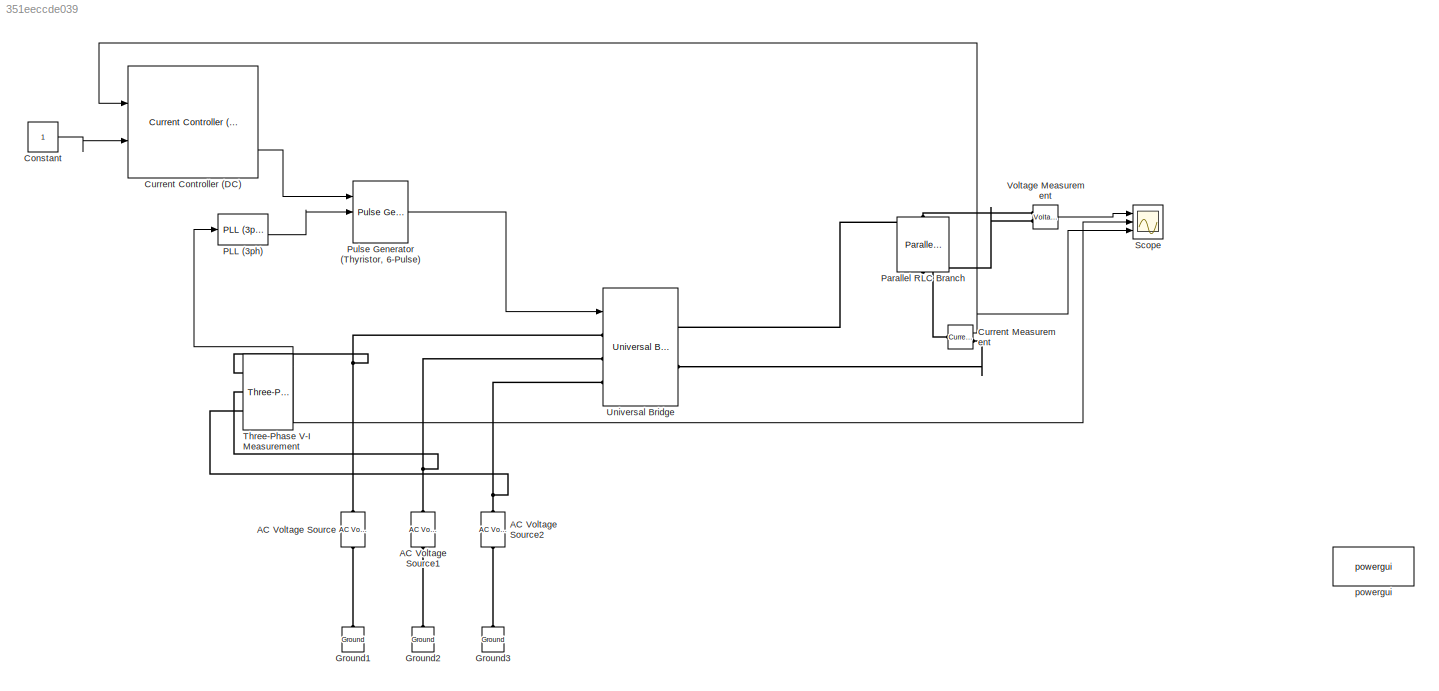
MODEL slx_351eeccde039
KIND model
CONFIG AbsTol = auto
CONFIG EnableMultiTasking = off
CONFIG FixedStep = auto
CONFIG MaxStep = auto
CONFIG MinStep = auto
CONFIG RelTol = 1e-3
CONFIG SampleTimeConstraint = Unconstrained
CONFIG Solver = VariableStepAuto
CONFIG SolverName = VariableStepAuto
CONFIG StartTime = 0.0
CONFIG StopTime = 0.03167
BLOCK [Reference] AC Voltage Source  REF=powerlib/Electrical
Sources/AC Voltage Source
  Ports = [0, 0, 0, 0, 0, 1, 1]
  SourceBlock = powerlib/Electrical\nSources/AC Voltage Source
  SourceProductBaseCode = PS
  SourceProductName = Simscape Electrical
  SourceType = AC Voltage Source
BLOCK [Reference] AC Voltage Source1  REF=powerlib/Electrical
Sources/AC Voltage Source
  Ports = [0, 0, 0, 0, 0, 1, 1]
  SourceBlock = powerlib/Electrical\nSources/AC Voltage Source
  SourceProductBaseCode = PS
  SourceProductName = Simscape Electrical
  SourceType = AC Voltage Source
BLOCK [Reference] AC Voltage Source2  REF=powerlib/Electrical
Sources/AC Voltage Source
  Ports = [0, 0, 0, 0, 0, 1, 1]
  SourceBlock = powerlib/Electrical\nSources/AC Voltage Source
  SourceProductBaseCode = PS
  SourceProductName = Simscape Electrical
  SourceType = AC Voltage Source
BLOCK [Constant] Constant
BLOCK [Reference] Current Controller (DC)  REF=electricdrivelib/Fundamental Drive Blocks/Current Controller
(DC)
  Ports = [2, 3]
  SourceBlock = electricdrivelib/Fundamental Drive Blocks/Current Controller\n(DC)
  SourceProductBaseCode = PS
  SourceProductName = Simscape Electrical
  SourceType = Current Controller (DC)
BLOCK [Reference] Current Measurement  REF=powerlib/Measurements/Current Measurement
  Ports = [0, 1, 0, 0, 0, 1, 1]
  SourceBlock = powerlib/Measurements/Current Measurement
  SourceProductBaseCode = PS
  SourceProductName = Simscape Electrical
  SourceType = Current Measurement
  UserDataPersistent = on
BLOCK [Reference] Ground1  REF=powerlib/Elements/Ground
  Ports = [0, 0, 0, 0, 0, 1]
  SourceBlock = powerlib/Elements/Ground
  SourceProductBaseCode = PS
  SourceProductName = Simscape Electrical
  SourceType = Ground
BLOCK [Reference] Ground2  REF=powerlib/Elements/Ground
  Ports = [0, 0, 0, 0, 0, 1]
  SourceBlock = powerlib/Elements/Ground
  SourceProductBaseCode = PS
  SourceProductName = Simscape Electrical
  SourceType = Ground
BLOCK [Reference] Ground3  REF=powerlib/Elements/Ground
  Ports = [0, 0, 0, 0, 0, 1]
  SourceBlock = powerlib/Elements/Ground
  SourceProductBaseCode = PS
  SourceProductName = Simscape Electrical
  SourceType = Ground
BLOCK [Reference] PLL (3ph)  REF=powerlib_meascontrol/PLL/PLL
(3ph)
  Ports = [1, 2]
  SourceBlock = powerlib_meascontrol/PLL/PLL\n(3ph)
  SourceProductBaseCode = PS
  SourceProductName = Simscape Electrical
  SourceType = PLL (3ph)
BLOCK [Reference] Parallel RLC Branch  REF=powerlib/Elements/Parallel RLC Branch
  AttributesFormatString = \n
  Ports = [0, 0, 0, 0, 0, 1, 1]
  SourceBlock = powerlib/Elements/Parallel RLC Branch
  SourceProductBaseCode = PS
  SourceProductName = Simscape Electrical
  SourceType = Parallel RLC Branch
BLOCK [Reference] Pulse Generator (Thyristor, 6-Pulse)  REF=powerlib_meascontrol/Pulse & Signal
Generators/Pulse Generator
(Thyristor, 12-Pulse)
  Ports = [3, 1]
  SourceBlock = powerlib_meascontrol/Pulse & Signal\nGenerators/Pulse Generator\n(Thyristor, 12-Pulse)
  SourceProductBaseCode = PS
  SourceProductName = Simscape Electrical
  SourceType = Pulse Generator (Thyristor)
BLOCK [Scope] Scope
  Floating = off
  NumInputPorts = 3
  Ports = [3]
  ScopeSpecificationString = Simulink.scopes.TimeScopeBlockCfg('CurrentConfiguration', extmgr.ConfigurationSet(extmgr.Configuration('Core','General UI',true),extmgr.Configuration('Core','Source UI',true),extmgr.Configuration('Sources','WiredSimulink',true),extmgr.Configuration('Visuals','Time Domain',true,'SerializedDisplays',{struct('MinYLimReal','-1039.94392','MaxYLimReal','1038.4724','YLabelReal','','MinYLimMag','  0.00000...<+2838ch>
BLOCK [Reference] Three-Phase V-I Measurement  REF=powerlib/Measurements/Three-Phase
V-I Measurement
  Ports = [0, 2, 0, 0, 0, 3, 3]
  SourceBlock = powerlib/Measurements/Three-Phase\nV-I Measurement
  SourceProductBaseCode = PS
  SourceProductName = Simscape Electrical
  SourceType = Three-Phase VI Measurement
BLOCK [Reference] Universal Bridge  REF=powerlib/Power
Electronics/Universal Bridge
  Ports = [1, 0, 0, 0, 0, 3, 2]
  SourceBlock = powerlib/Power\nElectronics/Universal Bridge
  SourceProductBaseCode = PS
  SourceProductName = Simscape Electrical
  SourceType = Universal Bridge
BLOCK [Reference] Voltage Measurement  REF=powerlib/Measurements/Voltage Measurement
  Ports = [0, 1, 0, 0, 0, 2]
  SourceBlock = powerlib/Measurements/Voltage Measurement
  SourceProductBaseCode = PS
  SourceProductName = Simscape Electrical
  SourceType = Voltage Measurement
  UserDataPersistent = on
BLOCK [Reference] powergui  REF=powerlib/powergui
  Ports = []
  Priority = 1
  SourceBlock = powerlib/powergui
  SourceProductBaseCode = PS
  SourceProductName = Simscape Electrical
  SourceType = PSB option menu block
LINE Constant:1 -> Current Controller (DC):2
LINE Current Controller (DC):3 -> Pulse Generator (Thyristor, 6-Pulse):1
NET Current Measurement:1 -> Current Controller (DC):1, Scope:3
LINE PLL (3ph):2 -> Pulse Generator (Thyristor, 6-Pulse):2
LINE Pulse Generator (Thyristor, 6-Pulse):1 -> Universal Bridge:1
NET Three-Phase V-I Measurement:1 -> PLL (3ph):1, Scope:2
LINE Voltage Measurement:1 -> Scope:1
PLINE AC Voltage Source1:LConn1 -- Ground2:LConn1
PNET net1: AC Voltage Source1:RConn1 -- Three-Phase V-I Measurement:LConn2 -- Universal Bridge:LConn2
PLINE AC Voltage Source2:LConn1 -- Ground3:LConn1
PNET net2: AC Voltage Source2:RConn1 -- Three-Phase V-I Measurement:LConn3 -- Universal Bridge:LConn3
PLINE AC Voltage Source:LConn1 -- Ground1:LConn1
PNET net3: AC Voltage Source:RConn1 -- Three-Phase V-I Measurement:LConn1 -- Universal Bridge:LConn1
PNET net4: Current Measurement:LConn1 -- Parallel RLC Branch:RConn1 -- Voltage Measurement:LConn2
PLINE Current Measurement:RConn1 -- Universal Bridge:RConn2
PNET net5: Parallel RLC Branch:LConn1 -- Universal Bridge:RConn1 -- Voltage Measurement:LConn1
note: NET lines group one-source signal fan-out (src -> all destinations, sorted); 1:1 wires keep LINE; PNET lines group multi-terminal physical nets as a canonical sorted terminal list (undirected conserving connections); 2-terminal nets keep the pairwise PLINE form
